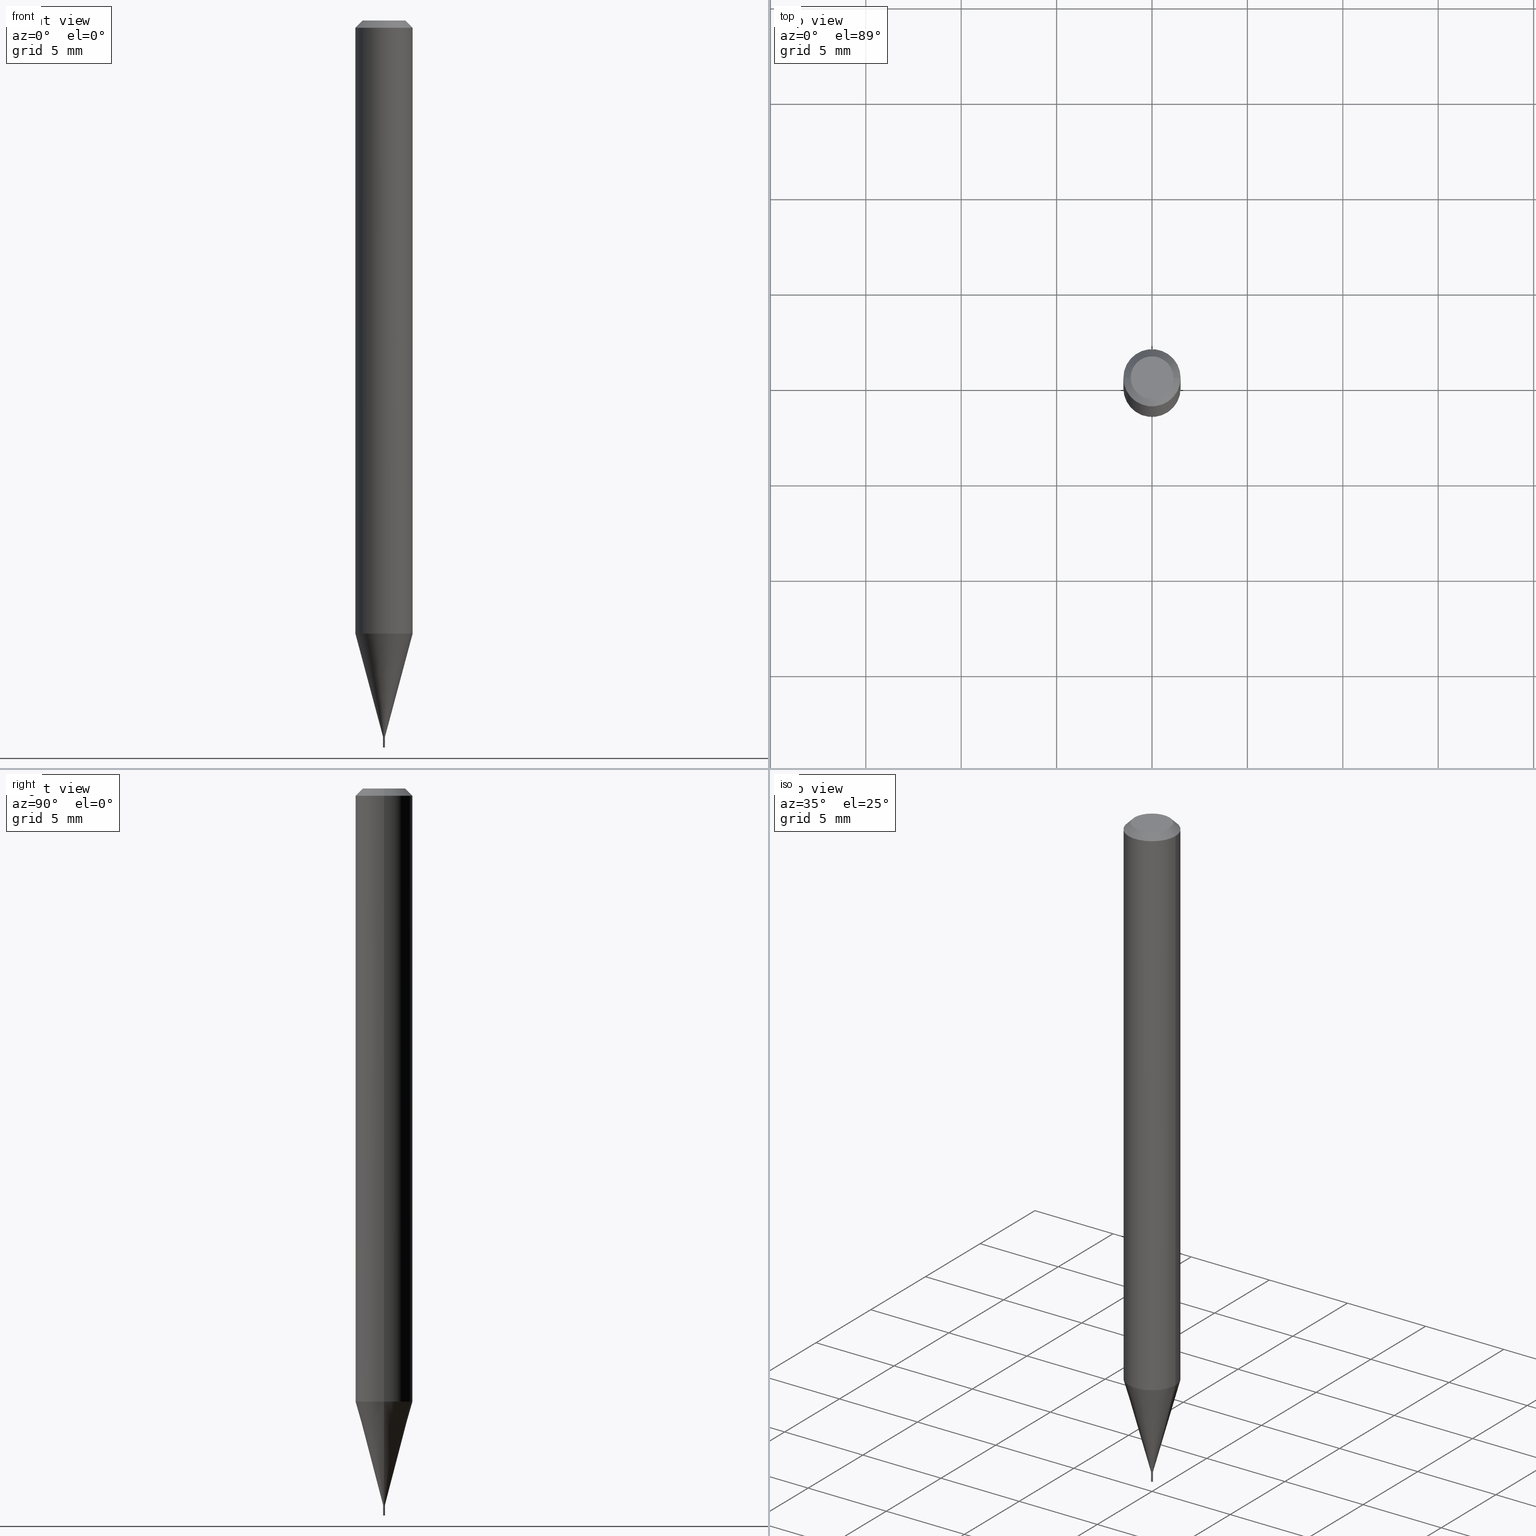
[diagram: canonical four-view strip — front | top / right | iso, engineering-drawing reading convention]
A machine part, canonical four-view strip (front | top / right | iso — engineering-drawing reading convention). The complete STEP part file that produces these views, byte-faithful:
ISO-10303-21;
HEADER;
FILE_DESCRIPTION (( 'STEP AP203' ),
    '1' );
FILE_NAME ('05054.STEP',
    '2024-03-14T17:37:16',
    ( '' ),
    ( '' ),
    'SwSTEP 2.0',
    'SolidWorks 2023',
    '' );
FILE_SCHEMA (( 'CONFIG_CONTROL_DESIGN' ));
ENDSEC;

DATA;
#1 = CARTESIAN_POINT ( 'NONE',  ( 0.05904999999999999138, -4.829416634856539437E-15, -1.265099898887817487 ) ) ;
#2 = ADVANCED_FACE ( 'NONE', ( #173 ), #373, .T. ) ;
#3 = PERSON_AND_ORGANIZATION ( #115, #299 ) ;
#4 = CARTESIAN_POINT ( 'NONE',  ( -0.05904999999999999832, 4.195754854663391478E-16, -2.904631170795521892E-30 ) ) ;
#5 = EDGE_CURVE ( 'NONE', #347, #369, #342, .T. ) ;
#6 = AXIS2_PLACEMENT_3D ( 'NONE', #300, #71, #432 ) ;
#7 = FACE_OUTER_BOUND ( 'NONE', #419, .T. ) ;
#8 = EDGE_CURVE ( 'NONE', #251, #294, #309, .T. ) ;
#9 = CYLINDRICAL_SURFACE ( 'NONE', #407, 0.05904999999999999832 ) ;
#10 = CARTESIAN_POINT ( 'NONE',  ( 0.04404999999999999888, -3.798447818264435920E-16, 1.385648594563833284E-15 ) ) ;
#11 = ORIENTED_EDGE ( 'NONE', *, *, #112, .T. ) ;
#12 = CARTESIAN_POINT ( 'NONE',  ( 0.001949999999999999910, -5.209639305687856843E-15, -1.488199999999999967 ) ) ;
#13 = CARTESIAN_POINT ( 'NONE',  ( 3.093762339438127959E-29, -4.417072688739165306E-15, -1.265099898887817487 ) ) ;
#14 = SECURITY_CLASSIFICATION ( '', '', #194 ) ;
#15 = CARTESIAN_POINT ( 'NONE',  ( -3.388560414340124120E-44, 4.837966210113847534E-30, 1.385648594563830917E-15 ) ) ;
#16 = ADVANCED_FACE ( 'NONE', ( #162 ), #9, .T. ) ;
#17 = DIRECTION ( 'NONE',  ( -2.445468806185136597E-29, 3.491481338843145583E-15, 1.000000000000000000 ) ) ;
#18 = DIRECTION ( 'NONE',  ( 1.000000000000000000, -6.982962677686265922E-15, 4.957392940945096353E-29 ) ) ;
#19 = CARTESIAN_POINT ( 'NONE',  ( 3.668203209277705088E-31, -5.237222008264718399E-17, -0.01499999999999999944 ) ) ;
#20 = DIRECTION ( 'NONE',  ( 1.000000000000000000, -6.982962677686435527E-15, 0.000000000000000000 ) ) ;
#21 = DIRECTION ( 'NONE',  ( 0.2588190451025213501, 1.565188264969621968E-15, 0.9659258262890682012 ) ) ;
#22 = ORIENTED_EDGE ( 'NONE', *, *, #461, .F. ) ;
#23 = DIRECTION ( 'NONE',  ( -2.438088387897960049E-29, 3.491481338843145188E-15, 1.000000000000000000 ) ) ;
#24 = CONICAL_SURFACE ( 'NONE', #245, 0.001949999999999922715, 0.2617993877991500740 ) ;
#25 = EDGE_CURVE ( 'NONE', #251, #466, #276, .T. ) ;
#26 = CC_DESIGN_APPROVAL ( #135, ( #14 ) ) ;
#27 = ORIENTED_EDGE ( 'NONE', *, *, #364, .T. ) ;
#28 = EDGE_LOOP ( 'NONE', ( #27, #284, #341, #268 ) ) ;
#29 = ORIENTED_EDGE ( 'NONE', *, *, #457, .T. ) ;
#30 = AXIS2_PLACEMENT_3D ( 'NONE', #191, #73, #295 ) ;
#31 = ORIENTED_EDGE ( 'NONE', *, *, #8, .T. ) ;
#32 = PERSON_AND_ORGANIZATION ( #115, #299 ) ;
#33 = APPLICATION_CONTEXT ( 'configuration controlled 3d designs of mechanical parts and assemblies' ) ;
#34 = APPROVAL ( #459, 'UNSPECIFIED' ) ;
#35 = DIRECTION ( 'NONE',  ( 1.000000000000000000, -6.982962677686144437E-15, 0.000000000000000000 ) ) ;
#36 = EDGE_CURVE ( 'NONE', #390, #462, #202, .T. ) ;
#37 = CYLINDRICAL_SURFACE ( 'NONE', #68, 0.001949999999999922715 ) ;
#38 = VECTOR ( 'NONE', #310, 39.37007874015747433 ) ;
#39 = CARTESIAN_POINT ( 'NONE',  ( 0.000000000000000000, 0.000000000000000000, 0.000000000000000000 ) ) ;
#40 = PRODUCT_DEFINITION_SHAPE ( 'NONE', 'NONE',  #151 ) ;
#41 = EDGE_LOOP ( 'NONE', ( #109, #11, #228, #105 ) ) ;
#42 = CARTESIAN_POINT ( 'NONE',  ( -0.001949999999999922715, -4.572374667501720637E-15, -1.478200000000000180 ) ) ;
#43 = AXIS2_PLACEMENT_3D ( 'NONE', #83, #363, #207 ) ;
#44 = ORIENTED_EDGE ( 'NONE', *, *, #36, .F. ) ;
#45 = CARTESIAN_POINT ( 'NONE',  ( 3.668203209277704895E-29, -5.237222008264718177E-15, -1.500000000000000222 ) ) ;
#46 = DIRECTION ( 'NONE',  ( 1.000000000000000000, -6.982962677686273021E-15, 0.000000000000000000 ) ) ;
#47 = PLANE ( 'NONE',  #317 ) ;
#48 =( NAMED_UNIT ( * ) SI_UNIT ( $, .STERADIAN. ) SOLID_ANGLE_UNIT ( ) );
#49 = DIRECTION ( 'NONE',  ( -2.445468806185136597E-29, 3.491481338843145583E-15, 1.000000000000000000 ) ) ;
#50 = DIRECTION ( 'NONE',  ( -2.445468806185136877E-29, 3.491481338843145188E-15, 1.000000000000000000 ) ) ;
#51 = DIRECTION ( 'NONE',  ( 0.7071067811865642261, -2.468850131082432188E-15, 0.7071067811865306973 ) ) ;
#52 = CLOSED_SHELL ( 'NONE', ( #399, #360, #127, #404, #257, #2, #16, #189, #69, #350, #406, #393 ) ) ;
#53 = CIRCLE ( 'NONE', #121, 0.001950000000000004030 ) ;
#54 = CARTESIAN_POINT ( 'NONE',  ( 0.001950000000000004030, -5.250838785486206693E-15, -1.500000000000000222 ) ) ;
#55 = PLANE ( 'NONE',  #103 ) ;
#56 = DIRECTION ( 'NONE',  ( -0.7071067811865149322, 2.468850131081915484E-15, -0.7071067811865801023 ) ) ;
#57 = EDGE_LOOP ( 'NONE', ( #351, #349 ) ) ;
#58 = CARTESIAN_POINT ( 'NONE',  ( 0.001449999999999999900, -5.206147824349013835E-15, -1.488199999999999967 ) ) ;
#59 = CARTESIAN_POINT ( 'NONE',  ( -0.001949999999999922715, -5.180421204449625606E-15, -1.487700000000000022 ) ) ;
#60 = ORIENTED_EDGE ( 'NONE', *, *, #439, .T. ) ;
#61 = DESIGN_CONTEXT ( 'detailed design', #117, 'design' ) ;
#62 = AXIS2_PLACEMENT_3D ( 'NONE', #282, #132, #416 ) ;
#63 = ORIENTED_EDGE ( 'NONE', *, *, #364, .F. ) ;
#64 = EDGE_LOOP ( 'NONE', ( #262, #31, #183, #123 ) ) ;
#65 = CARTESIAN_POINT ( 'NONE',  ( -0.05904999999999999138, -3.997497203272825813E-15, -1.265099898887817487 ) ) ;
#66 = ORIENTED_EDGE ( 'NONE', *, *, #280, .F. ) ;
#67 = EDGE_CURVE ( 'NONE', #369, #294, #246, .T. ) ;
#68 = AXIS2_PLACEMENT_3D ( 'NONE', #39, #438, #358 ) ;
#69 = ADVANCED_FACE ( 'NONE', ( #376 ), #55, .F. ) ;
#70 = EDGE_CURVE ( 'NONE', #390, #286, #200, .T. ) ;
#71 = DIRECTION ( 'NONE',  ( -2.445468806185136597E-29, 3.491481338843145583E-15, 1.000000000000000000 ) ) ;
#72 = DATE_TIME_ROLE ( 'classification_date' ) ;
#73 = DIRECTION ( 'NONE',  ( -2.438088387897960049E-29, 3.491481338843145188E-15, 1.000000000000000000 ) ) ;
#74 = APPROVAL_PERSON_ORGANIZATION ( #120, #135, #402 ) ;
#75 = ORIENTED_EDGE ( 'NONE', *, *, #271, .T. ) ;
#76 = DIRECTION ( 'NONE',  ( -2.445468806185136597E-29, 3.491481338843145583E-15, 1.000000000000000000 ) ) ;
#77 = CALENDAR_DATE ( 2024, 14, 3 ) ;
#78 = CARTESIAN_POINT ( 'NONE',  ( 0.000000000000000000, 0.000000000000000000, 0.000000000000000000 ) ) ;
#79 = AXIS2_PLACEMENT_3D ( 'NONE', #15, #279, #239 ) ;
#80 = DIRECTION ( 'NONE',  ( -2.445468806185136597E-29, 3.491481338843145583E-15, 1.000000000000000000 ) ) ;
#81 = APPROVAL_PERSON_ORGANIZATION ( #129, #196, #420 ) ;
#82 = CALENDAR_DATE ( 2024, 14, 3 ) ;
#83 = CARTESIAN_POINT ( 'NONE',  ( 0.000000000000000000, 0.000000000000000000, 0.000000000000000000 ) ) ;
#84 = EDGE_CURVE ( 'NONE', #369, #347, #190, .T. ) ;
#85 = ORIENTED_EDGE ( 'NONE', *, *, #36, .T. ) ;
#86 = CARTESIAN_POINT ( 'NONE',  ( 0.001949999999999922715, -5.174724492299425982E-15, -1.478200000000000180 ) ) ;
#87 = ORIENTED_EDGE ( 'NONE', *, *, #280, .T. ) ;
#88 = EDGE_CURVE ( 'NONE', #466, #251, #186, .T. ) ;
#89 = DIRECTION ( 'NONE',  ( -2.445468806185136597E-29, 3.491481338843145583E-15, 1.000000000000000000 ) ) ;
#90 = CARTESIAN_POINT ( 'NONE',  ( -0.04404999999999999888, 3.337856159934058298E-16, 1.385648594563828748E-15 ) ) ;
#91 = DIRECTION ( 'NONE',  ( 1.000000000000000000, -6.982962677686435527E-15, 0.000000000000000000 ) ) ;
#92 = DIRECTION ( 'NONE',  ( -0.7071067811865642261, 7.493145998870414114E-15, 0.7071067811865306973 ) ) ;
#93 = DIRECTION ( 'NONE',  ( -2.445468806185136597E-29, 3.491481338843145583E-15, 1.000000000000000000 ) ) ;
#94 = LOCAL_TIME ( 13, 37, 16.00000000000000000, #97 ) ;
#95 = DIRECTION ( 'NONE',  ( -1.000000000000000000, 6.982962677686266711E-15, 0.000000000000000000 ) ) ;
#96 = ORIENTED_EDGE ( 'NONE', *, *, #222, .T. ) ;
#97 = COORDINATED_UNIVERSAL_TIME_OFFSET ( 5, 0, .BEHIND. ) ;
#98 = CARTESIAN_POINT ( 'NONE',  ( -0.001949999999999922715, -5.147252131730616249E-15, -1.478200000000000180 ) ) ;
#99 = ORIENTED_EDGE ( 'NONE', *, *, #439, .F. ) ;
#100 = CARTESIAN_POINT ( 'NONE',  ( -0.001950000000000004030, -5.202766685018222429E-15, -1.500000000000000222 ) ) ;
#101 = CYLINDRICAL_SURFACE ( 'NONE', #287, 0.001950000000000002079 ) ;
#102 = ORIENTED_EDGE ( 'NONE', *, *, #112, .F. ) ;
#103 = AXIS2_PLACEMENT_3D ( 'NONE', #314, #405, #453 ) ;
#104 = AXIS2_PLACEMENT_3D ( 'NONE', #144, #381, #411 ) ;
#105 = ORIENTED_EDGE ( 'NONE', *, *, #457, .F. ) ;
#106 = DIRECTION ( 'NONE',  ( 1.000000000000000000, -6.982962677686433160E-15, 0.000000000000000000 ) ) ;
#107 = EDGE_CURVE ( 'NONE', #462, #369, #415, .T. ) ;
#108 = DIRECTION ( 'NONE',  ( -2.445468806185136597E-29, 3.491481338843145583E-15, 1.000000000000000000 ) ) ;
#109 = ORIENTED_EDGE ( 'NONE', *, *, #461, .T. ) ;
#110 = CC_DESIGN_DATE_AND_TIME_ASSIGNMENT ( #371, #274, ( #151 ) ) ;
#111 = FACE_OUTER_BOUND ( 'NONE', #119, .T. ) ;
#112 = EDGE_CURVE ( 'NONE', #401, #286, #136, .T. ) ;
#113 = LOCAL_TIME ( 13, 37, 16.00000000000000000, #359 ) ;
#114 = DIRECTION ( 'NONE',  ( 1.000000000000000000, -6.982962677686267499E-15, 4.876176775795936353E-29 ) ) ;
#115 = PERSON ( 'UNSPECIFIED', 'UNSPECIFIED', 'UNSPECIFIED', ('UNSPECIFIED'), ('UNSPECIFIED'), ('UNSPECIFIED') ) ;
#116 = PERSON_AND_ORGANIZATION_ROLE ( 'classification_officer' ) ;
#117 = APPLICATION_CONTEXT ( 'configuration controlled 3d designs of mechanical parts and assemblies' ) ;
#118 = CC_DESIGN_PERSON_AND_ORGANIZATION_ASSIGNMENT ( #3, #116, ( #14 ) ) ;
#119 = EDGE_LOOP ( 'NONE', ( #323, #145, #85, #99 ) ) ;
#120 = PERSON_AND_ORGANIZATION ( #115, #299 ) ;
#121 = AXIS2_PLACEMENT_3D ( 'NONE', #122, #76, #35 ) ;
#122 = CARTESIAN_POINT ( 'NONE',  ( 3.668203209277704895E-29, -5.237222008264718177E-15, -1.500000000000000222 ) ) ;
#123 = ORIENTED_EDGE ( 'NONE', *, *, #180, .F. ) ;
#124 = CARTESIAN_POINT ( 'NONE',  ( 0.000000000000000000, 0.000000000000000000, 0.000000000000000000 ) ) ;
#125 = EDGE_CURVE ( 'NONE', #286, #390, #444, .T. ) ;
#126 = DIRECTION ( 'NONE',  ( -1.000000000000000000, 6.982962677686265922E-15, -4.876176775795935793E-29 ) ) ;
#127 = ADVANCED_FACE ( 'NONE', ( #174 ), #324, .T. ) ;
#128 = AXIS2_PLACEMENT_3D ( 'NONE', #13, #333, #46 ) ;
#129 = PERSON_AND_ORGANIZATION ( #115, #299 ) ;
#130 = PRODUCT_DEFINITION_FORMATION_WITH_SPECIFIED_SOURCE ( 'ANY', '', #193, .NOT_KNOWN. ) ;
#131 = LINE ( 'NONE', #412, #167 ) ;
#132 = DIRECTION ( 'NONE',  ( 0.000000000000000000, 0.000000000000000000, 1.000000000000000000 ) ) ;
#133 = DIRECTION ( 'NONE',  ( -2.445468806185136597E-29, 3.491481338843145583E-15, 1.000000000000000000 ) ) ;
#134 = DIRECTION ( 'NONE',  ( -1.000000000000000000, 6.982962677686266711E-15, 0.000000000000000000 ) ) ;
#135 = APPROVAL ( #296, 'UNSPECIFIED' ) ;
#136 = LINE ( 'NONE', #377, #436 ) ;
#137 = ORIENTED_EDGE ( 'NONE', *, *, #25, .T. ) ;
#138 = DATE_AND_TIME ( #206, #94 ) ;
#139 = DIRECTION ( 'NONE',  ( -2.445468806185136597E-29, 3.491481338843145583E-15, 1.000000000000000000 ) ) ;
#140 = VECTOR ( 'NONE', #56, 39.37007874015748143 ) ;
#141 = LOCAL_TIME ( 13, 37, 16.00000000000000000, #157 ) ;
#142 = FACE_OUTER_BOUND ( 'NONE', #344, .T. ) ;
#143 = ORIENTED_EDGE ( 'NONE', *, *, #88, .T. ) ;
#144 = CARTESIAN_POINT ( 'NONE',  ( 3.668203209277705088E-31, -5.237222008264718399E-17, -0.01499999999999999944 ) ) ;
#145 = ORIENTED_EDGE ( 'NONE', *, *, #125, .T. ) ;
#146 = DIRECTION ( 'NONE',  ( -2.445468806185136597E-29, 3.491481338843145583E-15, 1.000000000000000000 ) ) ;
#147 = ORIENTED_EDGE ( 'NONE', *, *, #8, .F. ) ;
#148 = DIRECTION ( 'NONE',  ( -2.445468806185136597E-29, 3.491481338843145583E-15, 1.000000000000000000 ) ) ;
#149 = AXIS2_PLACEMENT_3D ( 'NONE', #182, #146, #285 ) ;
#150 = VECTOR ( 'NONE', #356, 39.37007874015748143 ) ;
#151 = PRODUCT_DEFINITION ( 'UNKNOWN', '', #130, #61 ) ;
#152 = EDGE_LOOP ( 'NONE', ( #450, #60, #241, #378 ) ) ;
#153 = AXIS2_PLACEMENT_3D ( 'NONE', #454, #242, #275 ) ;
#154 = AXIS2_PLACEMENT_3D ( 'NONE', #322, #148, #106 ) ;
#155 = CC_DESIGN_PERSON_AND_ORGANIZATION_ASSIGNMENT ( #361, #330, ( #130 ) ) ;
#156 = FACE_OUTER_BOUND ( 'NONE', #41, .T. ) ;
#157 = COORDINATED_UNIVERSAL_TIME_OFFSET ( 5, 0, .BEHIND. ) ;
#158 = CARTESIAN_POINT ( 'NONE',  ( 0.000000000000000000, 0.000000000000000000, 0.000000000000000000 ) ) ;
#159 = CIRCLE ( 'NONE', #339, 0.001949999999999922715 ) ;
#160 = EDGE_CURVE ( 'NONE', #248, #428, #229, .T. ) ;
#161 = APPROVAL_DATE_TIME ( #235, #135 ) ;
#162 = FACE_OUTER_BOUND ( 'NONE', #321, .T. ) ;
#163 = EDGE_CURVE ( 'NONE', #398, #347, #269, .T. ) ;
#164 = DIRECTION ( 'NONE',  ( 2.445468806185136597E-29, -3.491481338843145583E-15, -1.000000000000000000 ) ) ;
#165 = ADVANCED_FACE ( 'NONE', ( #142 ), #273, .T. ) ;
#166 = DIRECTION ( 'NONE',  ( 1.000000000000000000, -6.982962677686435527E-15, 0.000000000000000000 ) ) ;
#167 = VECTOR ( 'NONE', #171, 39.37007874015748143 ) ;
#168 = DIRECTION ( 'NONE',  ( -2.445468806185136597E-29, 3.491481338843145583E-15, 1.000000000000000000 ) ) ;
#169 = DIRECTION ( 'NONE',  ( -2.445468806185136597E-29, 3.491481338843145583E-15, 1.000000000000000000 ) ) ;
#170 = DIRECTION ( 'NONE',  ( 1.000000000000000000, -6.982962677686265922E-15, 4.876176775795935793E-29 ) ) ;
#171 = DIRECTION ( 'NONE',  ( -2.445468806185136877E-29, 3.491481338843145188E-15, 1.000000000000000000 ) ) ;
#172 =( LENGTH_UNIT ( ) NAMED_UNIT ( * ) SI_UNIT ( $, .METRE. ) );
#173 = FACE_OUTER_BOUND ( 'NONE', #152, .T. ) ;
#174 = FACE_OUTER_BOUND ( 'NONE', #64, .T. ) ;
#175 = VERTEX_POINT ( 'NONE', #307 ) ;
#176 =( CONVERSION_BASED_UNIT ( 'INCH', #449 ) LENGTH_UNIT ( ) NAMED_UNIT ( #208 ) );
#177 = VECTOR ( 'NONE', #21, 39.37007874015747433 ) ;
#178 = AXIS2_PLACEMENT_3D ( 'NONE', #210, #168, #218 ) ;
#179 = EDGE_LOOP ( 'NONE', ( #143, #137 ) ) ;
#180 = EDGE_CURVE ( 'NONE', #466, #357, #201, .T. ) ;
#181 = ORIENTED_EDGE ( 'NONE', *, *, #67, .F. ) ;
#182 = CARTESIAN_POINT ( 'NONE',  ( 3.639346677364720273E-29, -5.196022528466369115E-15, -1.488199999999999967 ) ) ;
#183 = ORIENTED_EDGE ( 'NONE', *, *, #440, .T. ) ;
#184 = MANIFOLD_SOLID_BREP ( 'Body-Move/Copy2[1]', #397 ) ;
#185 = CARTESIAN_POINT ( 'NONE',  ( 3.639346677364720273E-29, -5.196022528466369115E-15, -1.488199999999999967 ) ) ;
#186 = CIRCLE ( 'NONE', #79, 0.04404999999999999888 ) ;
#187 = AXIS2_PLACEMENT_3D ( 'NONE', #78, #288, #429 ) ;
#188 = MANIFOLD_SOLID_BREP ( 'Body-Move/Copy2[2]', #52 ) ;
#189 = ADVANCED_FACE ( 'NONE', ( #334 ), #297, .T. ) ;
#190 = CIRCLE ( 'NONE', #252, 0.05904999999999999832 ) ;
#191 = CARTESIAN_POINT ( 'NONE',  ( 3.639346677364720273E-29, -5.196022528466369115E-15, -1.488199999999999967 ) ) ;
#192 = ADVANCED_FACE ( 'NONE', ( #312 ), #47, .F. ) ;
#193 = PRODUCT ( '05054', '05054', '', ( #213 ) ) ;
#194 = SECURITY_CLASSIFICATION_LEVEL ( 'unclassified' ) ;
#195 = FACE_OUTER_BOUND ( 'NONE', #289, .T. ) ;
#196 = APPROVAL ( #368, 'UNSPECIFIED' ) ;
#197 = SHAPE_DEFINITION_REPRESENTATION ( #40, #304 ) ;
#198 = PLANE ( 'NONE',  #30 ) ;
#199 = CALENDAR_DATE ( 2024, 14, 3 ) ;
#200 = CIRCLE ( 'NONE', #383, 0.001949999999999922715 ) ;
#201 = LINE ( 'NONE', #448, #140 ) ;
#202 = LINE ( 'NONE', #214, #236 ) ;
#203 = DATE_AND_TIME ( #199, #455 ) ;
#204 = DIRECTION ( 'NONE',  ( -2.445468806185136877E-29, 3.491481338843145188E-15, 1.000000000000000000 ) ) ;
#205 = ORIENTED_EDGE ( 'NONE', *, *, #440, .F. ) ;
#206 = CALENDAR_DATE ( 2024, 14, 3 ) ;
#207 = DIRECTION ( 'NONE',  ( 1.000000000000000000, -6.982962677686266711E-15, 4.876176775795935793E-29 ) ) ;
#208 = DIMENSIONAL_EXPONENTS ( 1.000000000000000000, 0.000000000000000000, 0.000000000000000000, 0.000000000000000000, 0.000000000000000000, 0.000000000000000000, 0.000000000000000000 ) ;
#209 = CIRCLE ( 'NONE', #260, 0.001449999999999999900 ) ;
#210 = CARTESIAN_POINT ( 'NONE',  ( 3.639346677364720273E-29, -5.196022528466369115E-15, -1.488199999999999967 ) ) ;
#211 = CARTESIAN_POINT ( 'NONE',  ( 0.05904999999999999832, -4.574846268510561447E-16, -0.01499999999999999944 ) ) ;
#212 = FACE_OUTER_BOUND ( 'NONE', #28, .T. ) ;
#213 = MECHANICAL_CONTEXT ( 'NONE', #33, 'mechanical' ) ;
#214 = CARTESIAN_POINT ( 'NONE',  ( 0.001949999999999922715, -1.361677722148768161E-17, 9.508544712801698495E-32 ) ) ;
#215 = CARTESIAN_POINT ( 'NONE',  ( 3.668203209277705088E-31, -5.237222008264718399E-17, -0.01499999999999999944 ) ) ;
#216 = CC_DESIGN_PERSON_AND_ORGANIZATION_ASSIGNMENT ( #278, #270, ( #151 ) ) ;
#217 = ORIENTED_EDGE ( 'NONE', *, *, #84, .T. ) ;
#218 = DIRECTION ( 'NONE',  ( 1.000000000000000000, -6.982962677686433160E-15, 0.000000000000000000 ) ) ;
#219 = ORIENTED_EDGE ( 'NONE', *, *, #348, .T. ) ;
#220 = VECTOR ( 'NONE', #414, 39.37007874015748143 ) ;
#221 =( GEOMETRIC_REPRESENTATION_CONTEXT ( 3 ) GLOBAL_UNCERTAINTY_ASSIGNED_CONTEXT ( ( #460 ) ) GLOBAL_UNIT_ASSIGNED_CONTEXT ( ( #176, #240, #48 ) ) REPRESENTATION_CONTEXT ( 'NONE', 'WORKASPACE' ) );
#222 = EDGE_CURVE ( 'NONE', #286, #398, #266, .T. ) ;
#223 = CIRCLE ( 'NONE', #237, 0.001949999999999922715 ) ;
#224 = DIRECTION ( 'NONE',  ( 1.000000000000000000, -6.982962677686266711E-15, 4.876176775795935793E-29 ) ) ;
#225 = EDGE_LOOP ( 'NONE', ( #102, #410, #29, #227 ) ) ;
#226 = VERTEX_POINT ( 'NONE', #409 ) ;
#227 = ORIENTED_EDGE ( 'NONE', *, *, #125, .F. ) ;
#228 = ORIENTED_EDGE ( 'NONE', *, *, #70, .F. ) ;
#229 = CIRCLE ( 'NONE', #265, 0.001950000000000004030 ) ;
#230 = ORIENTED_EDGE ( 'NONE', *, *, #70, .T. ) ;
#231 = AXIS2_PLACEMENT_3D ( 'NONE', #19, #89, #338 ) ;
#232 = VECTOR ( 'NONE', #51, 39.37007874015748854 ) ;
#233 = ORIENTED_EDGE ( 'NONE', *, *, #67, .T. ) ;
#234 = CARTESIAN_POINT ( 'NONE',  ( 3.614891989302869289E-29, -5.161107715077938255E-15, -1.478200000000000180 ) ) ;
#235 = DATE_AND_TIME ( #77, #113 ) ;
#236 = VECTOR ( 'NONE', #372, 39.37007874015748143 ) ;
#237 = AXIS2_PLACEMENT_3D ( 'NONE', #336, #17, #20 ) ;
#238 = DIRECTION ( 'NONE',  ( 1.000000000000000000, -6.982962677686273021E-15, 0.000000000000000000 ) ) ;
#239 = DIRECTION ( 'NONE',  ( 1.000000000000000000, -6.982962677686265922E-15, 4.957392940945096353E-29 ) ) ;
#240 =( NAMED_UNIT ( * ) PLANE_ANGLE_UNIT ( ) SI_UNIT ( $, .RADIAN. ) );
#241 = ORIENTED_EDGE ( 'NONE', *, *, #107, .T. ) ;
#242 = DIRECTION ( 'NONE',  ( -2.445468806185136597E-29, 3.491481338843145583E-15, 1.000000000000000000 ) ) ;
#243 = CALENDAR_DATE ( 2024, 14, 3 ) ;
#244 = DIRECTION ( 'NONE',  ( -2.445468806185136597E-29, 3.491481338843145583E-15, 1.000000000000000000 ) ) ;
#245 = AXIS2_PLACEMENT_3D ( 'NONE', #370, #169, #166 ) ;
#246 = LINE ( 'NONE', #441, #220 ) ;
#247 = ORIENTED_EDGE ( 'NONE', *, *, #160, .T. ) ;
#248 = VERTEX_POINT ( 'NONE', #54 ) ;
#249 = CARTESIAN_POINT ( 'NONE',  ( 3.576687321579069994E-29, -5.368277968210015545E-15, -1.500000000000000222 ) ) ;
#250 = CARTESIAN_POINT ( 'NONE',  ( 0.000000000000000000, 0.000000000000000000, 0.000000000000000000 ) ) ;
#251 = VERTEX_POINT ( 'NONE', #10 ) ;
#252 = AXIS2_PLACEMENT_3D ( 'NONE', #264, #80, #238 ) ;
#253 = EDGE_LOOP ( 'NONE', ( #425, #219, #87, #254 ) ) ;
#254 = ORIENTED_EDGE ( 'NONE', *, *, #293, .F. ) ;
#255 = AXIS2_PLACEMENT_3D ( 'NONE', #215, #164, #134 ) ;
#256 = CARTESIAN_POINT ( 'NONE',  ( -0.05904999999999999832, -1.815146968944566897E-15, -0.01499999999999999944 ) ) ;
#257 = ADVANCED_FACE ( 'NONE', ( #212 ), #24, .T. ) ;
#258 = ORIENTED_EDGE ( 'NONE', *, *, #160, .F. ) ;
#259 = PERSON_AND_ORGANIZATION ( #115, #299 ) ;
#260 = AXIS2_PLACEMENT_3D ( 'NONE', #185, #108, #389 ) ;
#261 = CARTESIAN_POINT ( 'NONE',  ( 3.639346677364720273E-29, -5.196022528466369115E-15, -1.488199999999999967 ) ) ;
#262 = ORIENTED_EDGE ( 'NONE', *, *, #25, .F. ) ;
#263 = PERSON_AND_ORGANIZATION_ROLE ( 'creator' ) ;
#264 = CARTESIAN_POINT ( 'NONE',  ( 3.093762339438127959E-29, -4.417072688739165306E-15, -1.265099898887817487 ) ) ;
#265 = AXIS2_PLACEMENT_3D ( 'NONE', #45, #244, #315 ) ;
#266 = LINE ( 'NONE', #374, #306 ) ;
#267 = PLANE ( 'NONE',  #332 ) ;
#268 = ORIENTED_EDGE ( 'NONE', *, *, #107, .F. ) ;
#269 = LINE ( 'NONE', #98, #38 ) ;
#270 = PERSON_AND_ORGANIZATION_ROLE ( 'creator' ) ;
#271 = EDGE_CURVE ( 'NONE', #428, #226, #340, .T. ) ;
#272 = DIRECTION ( 'NONE',  ( 1.000000000000000000, -6.982962677686266711E-15, 4.876176775795936353E-29 ) ) ;
#273 = CYLINDRICAL_SURFACE ( 'NONE', #43, 0.001950000000000002079 ) ;
#274 = DATE_TIME_ROLE ( 'creation_date' ) ;
#275 = DIRECTION ( 'NONE',  ( 1.000000000000000000, -6.982962677686435527E-15, 0.000000000000000000 ) ) ;
#276 = CIRCLE ( 'NONE', #392, 0.04404999999999999888 ) ;
#277 = ORIENTED_EDGE ( 'NONE', *, *, #283, .F. ) ;
#278 = PERSON_AND_ORGANIZATION ( #115, #299 ) ;
#279 = DIRECTION ( 'NONE',  ( -2.445468806185136597E-29, 3.491481338843145583E-15, 1.000000000000000000 ) ) ;
#280 = EDGE_CURVE ( 'NONE', #248, #456, #131, .T. ) ;
#281 = ORIENTED_EDGE ( 'NONE', *, *, #348, .F. ) ;
#282 = CARTESIAN_POINT ( 'NONE',  ( 0.000000000000000000, 0.000000000000000000, 0.000000000000000000 ) ) ;
#283 = EDGE_CURVE ( 'NONE', #357, #294, #427, .T. ) ;
#284 = ORIENTED_EDGE ( 'NONE', *, *, #163, .T. ) ;
#285 = DIRECTION ( 'NONE',  ( 1.000000000000000000, -6.982962677686159425E-15, 0.000000000000000000 ) ) ;
#286 = VERTEX_POINT ( 'NONE', #59 ) ;
#287 = AXIS2_PLACEMENT_3D ( 'NONE', #250, #382, #224 ) ;
#288 = DIRECTION ( 'NONE',  ( -2.445468806185136597E-29, 3.491481338843145583E-15, 1.000000000000000000 ) ) ;
#289 = EDGE_LOOP ( 'NONE', ( #230, #96, #63, #44 ) ) ;
#290 = COORDINATED_UNIVERSAL_TIME_OFFSET ( 5, 0, .BEHIND. ) ;
#291 = AXIS2_PLACEMENT_3D ( 'NONE', #422, #367, #95 ) ;
#292 = ADVANCED_FACE ( 'NONE', ( #424 ), #101, .T. ) ;
#293 = EDGE_CURVE ( 'NONE', #226, #456, #337, .T. ) ;
#294 = VERTEX_POINT ( 'NONE', #426 ) ;
#295 = DIRECTION ( 'NONE',  ( 1.000000000000000000, -6.982962677686265922E-15, 4.876176775795935793E-29 ) ) ;
#296 = APPROVAL_STATUS ( 'not_yet_approved' ) ;
#297 = CONICAL_SURFACE ( 'NONE', #255, 0.05904999999999999832, 0.7853981633974022047 ) ;
#298 = DIRECTION ( 'NONE',  ( -2.445468806185136597E-29, 3.491481338843145583E-15, 1.000000000000000000 ) ) ;
#299 = ORGANIZATION ( 'UNSPECIFIED', 'UNSPECIFIED', '' ) ;
#300 = CARTESIAN_POINT ( 'NONE',  ( 3.639346677364720273E-29, -5.196022528466369115E-15, -1.488199999999999967 ) ) ;
#301 = CARTESIAN_POINT ( 'NONE',  ( 3.638123942961628033E-29, -5.194276787796947611E-15, -1.487700000000000022 ) ) ;
#302 = APPROVAL_DATE_TIME ( #203, #34 ) ;
#303 = CARTESIAN_POINT ( 'NONE',  ( 1.361677722152461171E-17, 0.001949999999994803763, -1.488199999999999967 ) ) ;
#304 = ADVANCED_BREP_SHAPE_REPRESENTATION ( '05054', ( #184, #188, #62 ), #221 ) ;
#305 = PERSON_AND_ORGANIZATION ( #115, #299 ) ;
#306 = VECTOR ( 'NONE', #204, 39.37007874015748143 ) ;
#307 = CARTESIAN_POINT ( 'NONE',  ( 0.001449999999999999900, -5.206147824349013835E-15, -1.488199999999999967 ) ) ;
#308 = APPROVAL_PERSON_ORGANIZATION ( #32, #34, #391 ) ;
#309 = LINE ( 'NONE', #211, #464 ) ;
#310 = DIRECTION ( 'NONE',  ( -0.2588190451025213501, 5.211531920934551042E-15, 0.9659258262890682012 ) ) ;
#311 = LINE ( 'NONE', #58, #232 ) ;
#312 = FACE_OUTER_BOUND ( 'NONE', #57, .T. ) ;
#313 = EDGE_LOOP ( 'NONE', ( #217, #385, #205, #181 ) ) ;
#314 = CARTESIAN_POINT ( 'NONE',  ( 3.075995059520799729E-16, 0.04404999999999999888, 5.390245443058748806E-16 ) ) ;
#315 = DIRECTION ( 'NONE',  ( 1.000000000000000000, -6.982962677686144437E-15, 0.000000000000000000 ) ) ;
#316 = EDGE_CURVE ( 'NONE', #401, #175, #209, .T. ) ;
#317 = AXIS2_PLACEMENT_3D ( 'NONE', #303, #442, #126 ) ;
#318 = ORIENTED_EDGE ( 'NONE', *, *, #180, .T. ) ;
#319 = AXIS2_PLACEMENT_3D ( 'NONE', #261, #331, #328 ) ;
#320 = ORIENTED_EDGE ( 'NONE', *, *, #283, .T. ) ;
#321 = EDGE_LOOP ( 'NONE', ( #458, #423, #233, #277 ) ) ;
#322 = CARTESIAN_POINT ( 'NONE',  ( 3.639346677364720273E-29, -5.196022528466369115E-15, -1.488199999999999967 ) ) ;
#323 = ORIENTED_EDGE ( 'NONE', *, *, #222, .F. ) ;
#324 = CONICAL_SURFACE ( 'NONE', #291, 0.05904999999999999832, 0.7853981633974022047 ) ;
#325 = LINE ( 'NONE', #4, #150 ) ;
#326 = LOCAL_TIME ( 13, 37, 16.00000000000000000, #413 ) ;
#327 = CC_DESIGN_DATE_AND_TIME_ASSIGNMENT ( #396, #72, ( #14 ) ) ;
#328 = DIRECTION ( 'NONE',  ( 1.000000000000000000, -6.982962677686159425E-15, 0.000000000000000000 ) ) ;
#329 = CYLINDRICAL_SURFACE ( 'NONE', #465, 0.001949999999999922715 ) ;
#330 = PERSON_AND_ORGANIZATION_ROLE ( 'design_supplier' ) ;
#331 = DIRECTION ( 'NONE',  ( -2.445468806185136597E-29, 3.491481338843145583E-15, 1.000000000000000000 ) ) ;
#332 = AXIS2_PLACEMENT_3D ( 'NONE', #249, #23, #170 ) ;
#333 = DIRECTION ( 'NONE',  ( -2.445468806185136597E-29, 3.491481338843145583E-15, 1.000000000000000000 ) ) ;
#334 = FACE_OUTER_BOUND ( 'NONE', #430, .T. ) ;
#335 = CARTESIAN_POINT ( 'NONE',  ( 0.001949999999999922715, -5.174724492299425982E-15, -1.478200000000000180 ) ) ;
#336 = CARTESIAN_POINT ( 'NONE',  ( 3.614891989302869289E-29, -5.161107715077938255E-15, -1.478200000000000180 ) ) ;
#337 = CIRCLE ( 'NONE', #149, 0.001949999999999999910 ) ;
#338 = DIRECTION ( 'NONE',  ( 1.000000000000000000, -6.982962677686266711E-15, 0.000000000000000000 ) ) ;
#339 = AXIS2_PLACEMENT_3D ( 'NONE', #234, #353, #435 ) ;
#340 = LINE ( 'NONE', #445, #352 ) ;
#341 = ORIENTED_EDGE ( 'NONE', *, *, #84, .F. ) ;
#342 = CIRCLE ( 'NONE', #128, 0.05904999999999999832 ) ;
#343 = AXIS2_PLACEMENT_3D ( 'NONE', #417, #49, #91 ) ;
#344 = EDGE_LOOP ( 'NONE', ( #247, #75, #387, #66 ) ) ;
#345 = APPLICATION_PROTOCOL_DEFINITION ( 'international standard', 'config_control_design', 1994, #33 ) ;
#346 = CONICAL_SURFACE ( 'NONE', #154, 0.001449999999999999900, 0.7853981633974720378 ) ;
#347 = VERTEX_POINT ( 'NONE', #65 ) ;
#348 = EDGE_CURVE ( 'NONE', #428, #248, #53, .T. ) ;
#349 = ORIENTED_EDGE ( 'NONE', *, *, #293, .T. ) ;
#350 = ADVANCED_FACE ( 'NONE', ( #7 ), #198, .F. ) ;
#351 = ORIENTED_EDGE ( 'NONE', *, *, #386, .T. ) ;
#352 = VECTOR ( 'NONE', #50, 39.37007874015748143 ) ;
#353 = DIRECTION ( 'NONE',  ( -2.445468806185136597E-29, 3.491481338843145583E-15, 1.000000000000000000 ) ) ;
#354 = CYLINDRICAL_SURFACE ( 'NONE', #187, 0.05904999999999999832 ) ;
#355 = CC_DESIGN_PERSON_AND_ORGANIZATION_ASSIGNMENT ( #259, #263, ( #130 ) ) ;
#356 = DIRECTION ( 'NONE',  ( -2.445468806185136877E-29, 3.491481338843145188E-15, 1.000000000000000000 ) ) ;
#357 = VERTEX_POINT ( 'NONE', #256 ) ;
#358 = DIRECTION ( 'NONE',  ( 1.000000000000000000, -6.982962677686267499E-15, 4.876176775795936353E-29 ) ) ;
#359 = COORDINATED_UNIVERSAL_TIME_OFFSET ( 5, 0, .BEHIND. ) ;
#360 = ADVANCED_FACE ( 'NONE', ( #156 ), #418, .T. ) ;
#361 = PERSON_AND_ORGANIZATION ( #115, #299 ) ;
#362 = CIRCLE ( 'NONE', #104, 0.05904999999999999832 ) ;
#363 = DIRECTION ( 'NONE',  ( -2.445468806185136597E-29, 3.491481338843145583E-15, 1.000000000000000000 ) ) ;
#364 = EDGE_CURVE ( 'NONE', #462, #398, #159, .T. ) ;
#365 = CARTESIAN_POINT ( 'NONE',  ( -3.388560414340124120E-44, 4.837966210113847534E-30, 1.385648594563830917E-15 ) ) ;
#366 = EDGE_CURVE ( 'NONE', #347, #357, #325, .T. ) ;
#367 = DIRECTION ( 'NONE',  ( 2.445468806185136597E-29, -3.491481338843145583E-15, -1.000000000000000000 ) ) ;
#368 = APPROVAL_STATUS ( 'not_yet_approved' ) ;
#369 = VERTEX_POINT ( 'NONE', #1 ) ;
#370 = CARTESIAN_POINT ( 'NONE',  ( 3.614891989302869289E-29, -5.161107715077938255E-15, -1.478200000000000180 ) ) ;
#371 = DATE_AND_TIME ( #243, #326 ) ;
#372 = DIRECTION ( 'NONE',  ( -2.445468806185136877E-29, 3.491481338843145188E-15, 1.000000000000000000 ) ) ;
#373 = CONICAL_SURFACE ( 'NONE', #343, 0.001949999999999922715, 0.2617993877991500740 ) ;
#374 = CARTESIAN_POINT ( 'NONE',  ( -0.001949999999999922715, 1.385558334732140448E-17, -9.591923425996686822E-32 ) ) ;
#375 = FACE_OUTER_BOUND ( 'NONE', #434, .T. ) ;
#376 = FACE_OUTER_BOUND ( 'NONE', #179, .T. ) ;
#377 = CARTESIAN_POINT ( 'NONE',  ( -0.001449999999999999900, -5.185719658797847219E-15, -1.488199999999999967 ) ) ;
#378 = ORIENTED_EDGE ( 'NONE', *, *, #5, .F. ) ;
#379 = PRODUCT_RELATED_PRODUCT_CATEGORY ( 'detail', '', ( #193 ) ) ;
#380 = ORIENTED_EDGE ( 'NONE', *, *, #88, .F. ) ;
#381 = DIRECTION ( 'NONE',  ( -2.445468806185136597E-29, 3.491481338843145583E-15, 1.000000000000000000 ) ) ;
#382 = DIRECTION ( 'NONE',  ( -2.445468806185136597E-29, 3.491481338843145583E-15, 1.000000000000000000 ) ) ;
#383 = AXIS2_PLACEMENT_3D ( 'NONE', #301, #139, #421 ) ;
#384 = CC_DESIGN_APPROVAL ( #34, ( #130 ) ) ;
#385 = ORIENTED_EDGE ( 'NONE', *, *, #366, .T. ) ;
#386 = EDGE_CURVE ( 'NONE', #456, #226, #408, .T. ) ;
#387 = ORIENTED_EDGE ( 'NONE', *, *, #386, .F. ) ;
#388 = CC_DESIGN_PERSON_AND_ORGANIZATION_ASSIGNMENT ( #305, #443, ( #193 ) ) ;
#389 = DIRECTION ( 'NONE',  ( 1.000000000000000000, -6.982962677686433160E-15, 0.000000000000000000 ) ) ;
#390 = VERTEX_POINT ( 'NONE', #400 ) ;
#391 = APPROVAL_ROLE ( '' ) ;
#392 = AXIS2_PLACEMENT_3D ( 'NONE', #365, #93, #18 ) ;
#393 = ADVANCED_FACE ( 'NONE', ( #111 ), #37, .T. ) ;
#394 = CC_DESIGN_SECURITY_CLASSIFICATION ( #14, ( #130 ) ) ;
#395 = FACE_OUTER_BOUND ( 'NONE', #313, .T. ) ;
#396 = DATE_AND_TIME ( #82, #141 ) ;
#397 = CLOSED_SHELL ( 'NONE', ( #165, #433, #292, #192 ) ) ;
#398 = VERTEX_POINT ( 'NONE', #42 ) ;
#399 = ADVANCED_FACE ( 'NONE', ( #195 ), #329, .T. ) ;
#400 = CARTESIAN_POINT ( 'NONE',  ( 0.001949999999999922715, -5.207893565018435339E-15, -1.487700000000000022 ) ) ;
#401 = VERTEX_POINT ( 'NONE', #403 ) ;
#402 = APPROVAL_ROLE ( '' ) ;
#403 = CARTESIAN_POINT ( 'NONE',  ( -0.001449999999999999900, -5.183070431623736018E-15, -1.488199999999999967 ) ) ;
#404 = ADVANCED_FACE ( 'NONE', ( #395 ), #354, .T. ) ;
#405 = DIRECTION ( 'NONE',  ( 2.438088387897960049E-29, -3.491481338843145188E-15, -1.000000000000000000 ) ) ;
#406 = ADVANCED_FACE ( 'NONE', ( #463 ), #346, .T. ) ;
#407 = AXIS2_PLACEMENT_3D ( 'NONE', #124, #133, #272 ) ;
#408 = CIRCLE ( 'NONE', #319, 0.001949999999999999910 ) ;
#409 = CARTESIAN_POINT ( 'NONE',  ( -0.001949999999999999910, -5.202766685018222429E-15, -1.488199999999999967 ) ) ;
#410 = ORIENTED_EDGE ( 'NONE', *, *, #316, .T. ) ;
#411 = DIRECTION ( 'NONE',  ( 1.000000000000000000, -6.982962677686266711E-15, 0.000000000000000000 ) ) ;
#412 = CARTESIAN_POINT ( 'NONE',  ( 0.001950000000000002079, -1.361677722148823474E-17, 9.508544712802084947E-32 ) ) ;
#413 = COORDINATED_UNIVERSAL_TIME_OFFSET ( 5, 0, .BEHIND. ) ;
#414 = DIRECTION ( 'NONE',  ( -2.445468806185136877E-29, 3.491481338843145188E-15, 1.000000000000000000 ) ) ;
#415 = LINE ( 'NONE', #335, #177 ) ;
#416 = DIRECTION ( 'NONE',  ( 1.000000000000000000, 0.000000000000000000, 0.000000000000000000 ) ) ;
#417 = CARTESIAN_POINT ( 'NONE',  ( 3.614891989302869289E-29, -5.161107715077938255E-15, -1.478200000000000180 ) ) ;
#418 = CONICAL_SURFACE ( 'NONE', #6, 0.001449999999999999900, 0.7853981633974720378 ) ;
#419 = EDGE_LOOP ( 'NONE', ( #22, #451 ) ) ;
#420 = APPROVAL_ROLE ( '' ) ;
#421 = DIRECTION ( 'NONE',  ( 1.000000000000000000, -6.982962677686435527E-15, 0.000000000000000000 ) ) ;
#422 = CARTESIAN_POINT ( 'NONE',  ( 3.668203209277705088E-31, -5.237222008264718399E-17, -0.01499999999999999944 ) ) ;
#423 = ORIENTED_EDGE ( 'NONE', *, *, #5, .T. ) ;
#424 = FACE_OUTER_BOUND ( 'NONE', #253, .T. ) ;
#425 = ORIENTED_EDGE ( 'NONE', *, *, #271, .F. ) ;
#426 = CARTESIAN_POINT ( 'NONE',  ( 0.05904999999999999832, -4.647161662000212105E-16, -0.01499999999999999944 ) ) ;
#427 = CIRCLE ( 'NONE', #231, 0.05904999999999999832 ) ;
#428 = VERTEX_POINT ( 'NONE', #100 ) ;
#429 = DIRECTION ( 'NONE',  ( 1.000000000000000000, -6.982962677686266711E-15, 4.876176775795936353E-29 ) ) ;
#430 = EDGE_LOOP ( 'NONE', ( #147, #380, #318, #320 ) ) ;
#431 = CC_DESIGN_APPROVAL ( #196, ( #151 ) ) ;
#432 = DIRECTION ( 'NONE',  ( 1.000000000000000000, -6.982962677686433160E-15, 0.000000000000000000 ) ) ;
#433 = ADVANCED_FACE ( 'NONE', ( #375 ), #267, .F. ) ;
#434 = EDGE_LOOP ( 'NONE', ( #258, #281 ) ) ;
#435 = DIRECTION ( 'NONE',  ( 1.000000000000000000, -6.982962677686435527E-15, 0.000000000000000000 ) ) ;
#436 = VECTOR ( 'NONE', #92, 39.37007874015748854 ) ;
#437 = CIRCLE ( 'NONE', #178, 0.001449999999999999900 ) ;
#438 = DIRECTION ( 'NONE',  ( -2.445468806185136597E-29, 3.491481338843145583E-15, 1.000000000000000000 ) ) ;
#439 = EDGE_CURVE ( 'NONE', #398, #462, #223, .T. ) ;
#440 = EDGE_CURVE ( 'NONE', #294, #357, #362, .T. ) ;
#441 = CARTESIAN_POINT ( 'NONE',  ( 0.05904999999999999832, -4.123439461173740327E-16, 2.879382386107500220E-30 ) ) ;
#442 = DIRECTION ( 'NONE',  ( 2.438088387897960049E-29, -3.491481338843145188E-15, -1.000000000000000000 ) ) ;
#443 = PERSON_AND_ORGANIZATION_ROLE ( 'design_owner' ) ;
#444 = CIRCLE ( 'NONE', #153, 0.001949999999999922715 ) ;
#445 = CARTESIAN_POINT ( 'NONE',  ( -0.001950000000000002079, 1.385558334732196840E-17, -9.591923425997076558E-32 ) ) ;
#446 = APPROVAL_DATE_TIME ( #138, #196 ) ;
#447 = DIRECTION ( 'NONE',  ( 0.7071067811865149322, -7.319954787623147183E-15, -0.7071067811865801023 ) ) ;
#448 = CARTESIAN_POINT ( 'NONE',  ( -0.05904999999999999832, 3.599717260347268549E-16, -0.01499999999999999944 ) ) ;
#449 = LENGTH_MEASURE_WITH_UNIT ( LENGTH_MEASURE( 0.02539999999999999897 ), #172 );
#450 = ORIENTED_EDGE ( 'NONE', *, *, #163, .F. ) ;
#451 = ORIENTED_EDGE ( 'NONE', *, *, #316, .F. ) ;
#452 = APPLICATION_PROTOCOL_DEFINITION ( 'international standard', 'config_control_design', 1994, #117 ) ;
#453 = DIRECTION ( 'NONE',  ( -1.000000000000000000, 6.982962677686265922E-15, -4.876176775795935793E-29 ) ) ;
#454 = CARTESIAN_POINT ( 'NONE',  ( 3.638123942961628033E-29, -5.194276787796947611E-15, -1.487700000000000022 ) ) ;
#455 = LOCAL_TIME ( 13, 37, 16.00000000000000000, #290 ) ;
#456 = VERTEX_POINT ( 'NONE', #12 ) ;
#457 = EDGE_CURVE ( 'NONE', #175, #390, #311, .T. ) ;
#458 = ORIENTED_EDGE ( 'NONE', *, *, #366, .F. ) ;
#459 = APPROVAL_STATUS ( 'not_yet_approved' ) ;
#460 = UNCERTAINTY_MEASURE_WITH_UNIT (LENGTH_MEASURE( 1.000000000000000082E-05 ), #176, 'distance_accuracy_value', 'NONE');
#461 = EDGE_CURVE ( 'NONE', #175, #401, #437, .T. ) ;
#462 = VERTEX_POINT ( 'NONE', #86 ) ;
#463 = FACE_OUTER_BOUND ( 'NONE', #225, .T. ) ;
#464 = VECTOR ( 'NONE', #447, 39.37007874015748143 ) ;
#465 = AXIS2_PLACEMENT_3D ( 'NONE', #158, #298, #114 ) ;
#466 = VERTEX_POINT ( 'NONE', #90 ) ;
ENDSEC;
END-ISO-10303-21;
